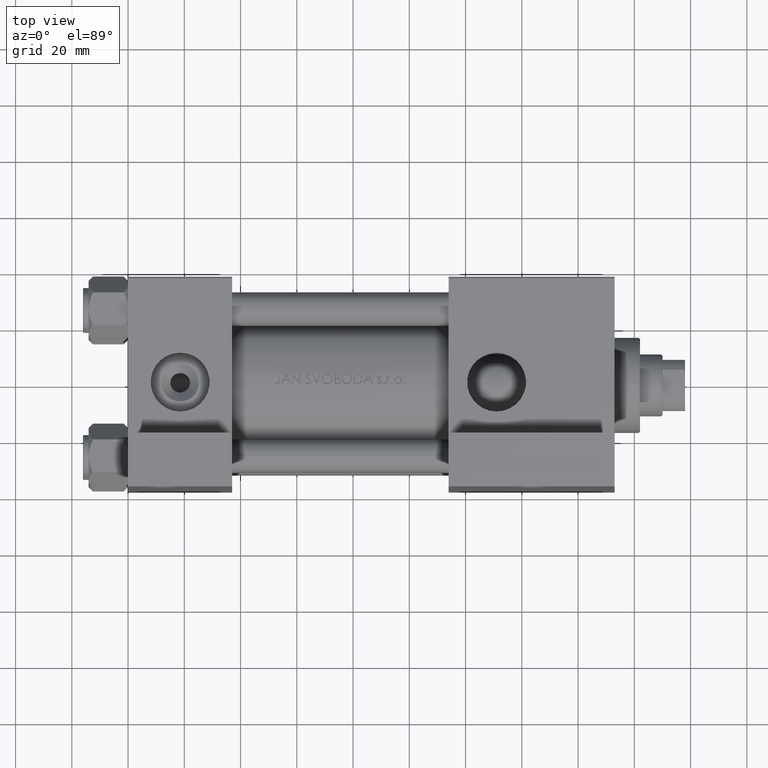
[diagram: clean part render]
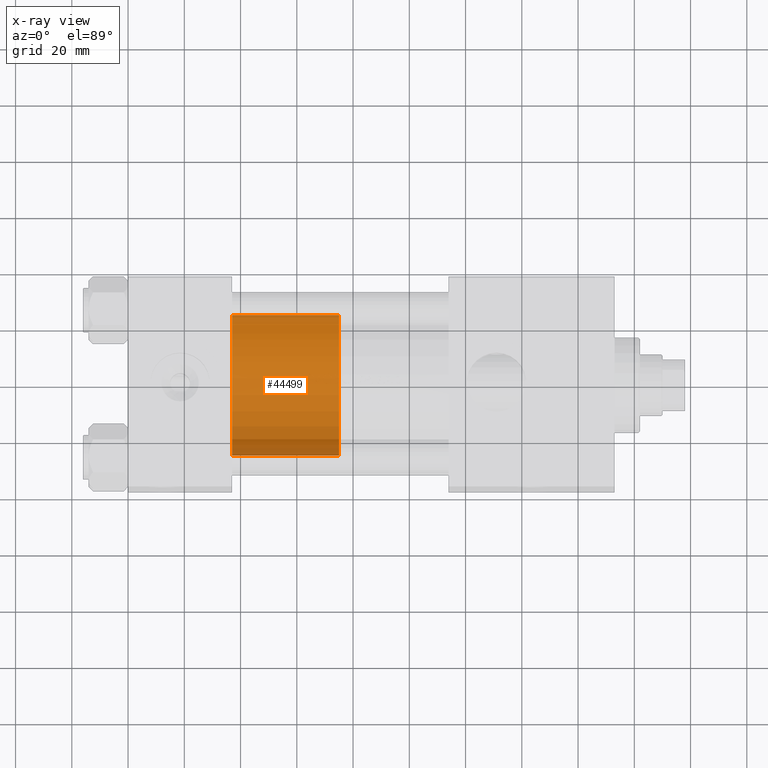
[diagram: x-ray — body ghosted, one internal face saturated and labeled with its STEP entity id]
A machine part, top view, then the same camera in x-ray: the body is ghosted and one INTERNAL B-rep face — a face not visible from any outside direction — is saturated and labeled: STEP entity #44499.
In plain terms, the highlighted cylindrical surface (partial cylindrical patch) has radius 25 mm, axis along (-1, 0, 0).
Its self-contained STEP definition (entity closure, byte-faithful):
#2572 = CIRCLE ( 'NONE', #30440, 25.00000000000000000 ) ;
#4884 = DIRECTION ( 'NONE',  ( 1.000000000000000000, 0.000000000000000000, 0.000000000000000000 ) ) ;
#6503 = VERTEX_POINT ( 'NONE', #19689 ) ;
#9998 = CARTESIAN_POINT ( 'NONE',  ( 0.000000000000000000, 0.000000000000000000, 38.00000000000000000 ) ) ;
#12561 = FACE_OUTER_BOUND ( 'NONE', #14073, .T. ) ;
#13113 = DIRECTION ( 'NONE',  ( 0.000000000000000000, 0.000000000000000000, 1.000000000000000000 ) ) ;
#13745 = DIRECTION ( 'NONE',  ( 0.000000000000000000, 0.000000000000000000, 1.000000000000000000 ) ) ;
#14073 = EDGE_LOOP ( 'NONE', ( #35728, #44526, #28501, #43089 ) ) ;
#15272 = AXIS2_PLACEMENT_3D ( 'NONE', #42698, #42945, #39692 ) ;
#19689 = CARTESIAN_POINT ( 'NONE',  ( -25.00000000000000000, 0.000000000000000000, 38.00000000000000000 ) ) ;
#21800 = VERTEX_POINT ( 'NONE', #38615 ) ;
#24024 = CYLINDRICAL_SURFACE ( 'NONE', #15272, 25.00000000000000000 ) ;
#24956 = EDGE_CURVE ( 'NONE', #21800, #6503, #37398, .T. ) ;
#25852 = LINE ( 'NONE', #48718, #34374 ) ;
#28501 = ORIENTED_EDGE ( 'NONE', *, *, #30604, .T. ) ;
#29054 = EDGE_CURVE ( 'NONE', #21800, #41232, #25852, .T. ) ;
#29392 = CARTESIAN_POINT ( 'NONE',  ( 25.00000000000000000, 3.061616997868383043E-15, 0.000000000000000000 ) ) ;
#29456 = CARTESIAN_POINT ( 'NONE',  ( -25.00000000000000000, 0.000000000000000000, 0.000000000000000000 ) ) ;
#30440 = AXIS2_PLACEMENT_3D ( 'NONE', #39018, #13113, #4884 ) ;
#30604 = EDGE_CURVE ( 'NONE', #41232, #46862, #2572, .T. ) ;
#31580 = VECTOR ( 'NONE', #46520, 1000.000000000000000 ) ;
#34374 = VECTOR ( 'NONE', #38017, 1000.000000000000000 ) ;
#34839 = CARTESIAN_POINT ( 'NONE',  ( -25.00000000000000000, 0.000000000000000000, 38.00000000000000000 ) ) ;
#35430 = DIRECTION ( 'NONE',  ( 1.000000000000000000, 0.000000000000000000, 0.000000000000000000 ) ) ;
#35728 = ORIENTED_EDGE ( 'NONE', *, *, #24956, .F. ) ;
#36249 = LINE ( 'NONE', #34839, #31580 ) ;
#37398 = CIRCLE ( 'NONE', #45349, 25.00000000000000000 ) ;
#38017 = DIRECTION ( 'NONE',  ( -0.000000000000000000, -0.000000000000000000, -1.000000000000000000 ) ) ;
#38615 = CARTESIAN_POINT ( 'NONE',  ( 25.00000000000000000, 3.061616997868383043E-15, 38.00000000000000000 ) ) ;
#39018 = CARTESIAN_POINT ( 'NONE',  ( 0.000000000000000000, 0.000000000000000000, 0.000000000000000000 ) ) ;
#39625 = EDGE_CURVE ( 'NONE', #6503, #46862, #36249, .T. ) ;
#39692 = DIRECTION ( 'NONE',  ( -1.000000000000000000, 0.000000000000000000, 0.000000000000000000 ) ) ;
#41232 = VERTEX_POINT ( 'NONE', #29392 ) ;
#42698 = CARTESIAN_POINT ( 'NONE',  ( 0.000000000000000000, 0.000000000000000000, 38.00000000000000000 ) ) ;
#42945 = DIRECTION ( 'NONE',  ( -0.000000000000000000, -0.000000000000000000, -1.000000000000000000 ) ) ;
#43089 = ORIENTED_EDGE ( 'NONE', *, *, #39625, .F. ) ;
#44499 = ADVANCED_FACE ( 'NONE', ( #12561 ), #24024, .T. ) ;
#44526 = ORIENTED_EDGE ( 'NONE', *, *, #29054, .T. ) ;
#45349 = AXIS2_PLACEMENT_3D ( 'NONE', #9998, #13745, #35430 ) ;
#46520 = DIRECTION ( 'NONE',  ( -0.000000000000000000, -0.000000000000000000, -1.000000000000000000 ) ) ;
#46862 = VERTEX_POINT ( 'NONE', #29456 ) ;
#48718 = CARTESIAN_POINT ( 'NONE',  ( 25.00000000000000000, 3.061616997868383043E-15, 38.00000000000000000 ) ) ;